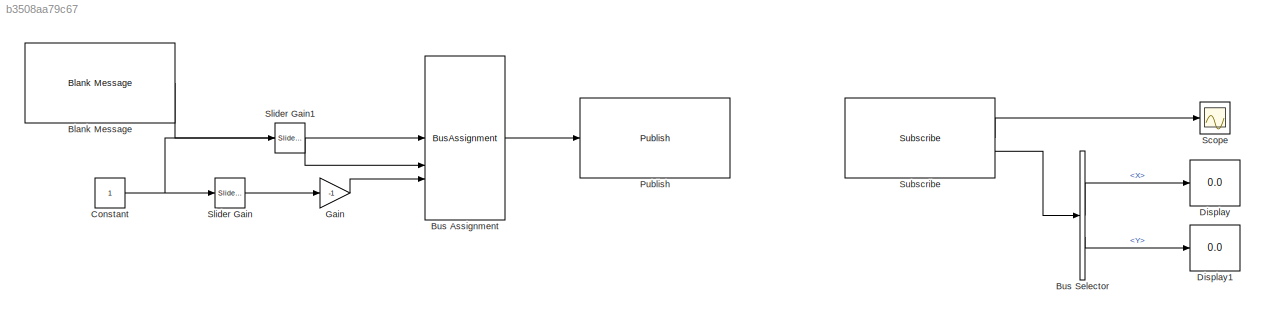
MODEL slx_b3508aa79c67
KIND model
CONFIG AbsTol = auto
CONFIG EnableMultiTasking = off
CONFIG FixedStep = auto
CONFIG MaxStep = auto
CONFIG MinStep = auto
CONFIG RelTol = 1e-3
CONFIG SampleTimeConstraint = Unconstrained
CONFIG SolverName = VariableStepAuto
CONFIG StartTime = 0.0
CONFIG StopTime = inf
WORKSPACE source: mxarray member
WORKSPACE Logfile_Data_Object: robotics.ros.BagSelection (value not decoded)
WORKSPACE Logfile_Path = '<path>'
WORKSPACE Logfile_Playback_Duration = nan
WORKSPACE Logfile_Playback_Offset = nan
BLOCK [Reference] Blank Message  REF=robotlib/Blank Message
  Commented = on
  SourceBlock = robotlib/Blank Message
  SourceType = ROS Blank Message
BLOCK [BusAssignment] Bus Assignment
  AssignedSignals = Linear.X,Angular.Z
  Commented = on
BLOCK [BusSelector] Bus Selector
  Commented = on
  OutputSignals = X,Y
BLOCK [Constant] Constant
  Commented = on
BLOCK [Display] Display
  Commented = on
  Decimation = 1
BLOCK [Display] Display1
  Commented = on
  Decimation = 1
BLOCK [Gain] Gain
  Commented = on
  Gain = -1
BLOCK [Reference] Publish  REF=robotlib/Publish
  Commented = on
  SourceBlock = robotlib/Publish
  SourceType = ROS Publish
BLOCK [Scope] Scope
  Commented = on
  Floating = off
  NumInputPorts = 1
  ScopeSpecificationString = Simulink.scopes.TimeScopeBlockCfg('CurrentConfiguration', extmgr.ConfigurationSet(extmgr.Configuration('Core','General UI',true),extmgr.Configuration('Core','Source UI',true),extmgr.Configuration('Sources','WiredSimulink',true),extmgr.Configuration('Visuals','Time Domain',true,'SerializedDisplays',{struct('MinYLimReal','-0.125','MaxYLimReal','1.125','YLabelReal','','MinYLimMag','0.00000','MaxYLimM...<+1374ch>
BLOCK [Reference] Slider Gain  REF=simulink/Math
Operations/Slider
Gain
  Commented = on
  SourceBlock = simulink/Math\nOperations/Slider\nGain
  SourceType = Slider Gain
BLOCK [Reference] Slider Gain1  REF=simulink/Math
Operations/Slider
Gain
  Commented = on
  SourceBlock = simulink/Math\nOperations/Slider\nGain
  SourceType = Slider Gain
BLOCK [Reference] Subscribe  REF=robotlib/Subscribe
  Commented = on
  SourceBlock = robotlib/Subscribe
  SourceType = ROS Subscribe
LINE Blank Message:1 -> Bus Assignment:1
LINE Bus Assignment:1 -> Publish:1
LINE Bus Selector:1 -> Display:1
LINE Bus Selector:2 -> Display1:1
NET Constant:1 -> Slider Gain1:1, Slider Gain:1
LINE Gain:1 -> Bus Assignment:3
LINE Slider Gain1:1 -> Bus Assignment:2
LINE Slider Gain:1 -> Gain:1
LINE Subscribe:1 -> Scope:1
LINE Subscribe:2 -> Bus Selector:1
note: NET lines group one-source signal fan-out (src -> all destinations, sorted); 1:1 wires keep LINE
